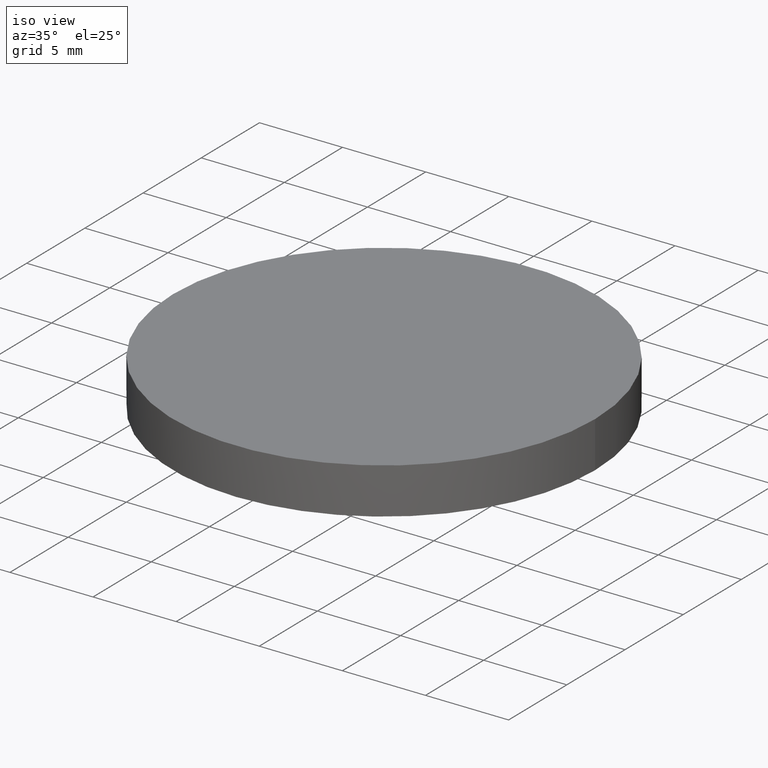
[diagram: clean part render]
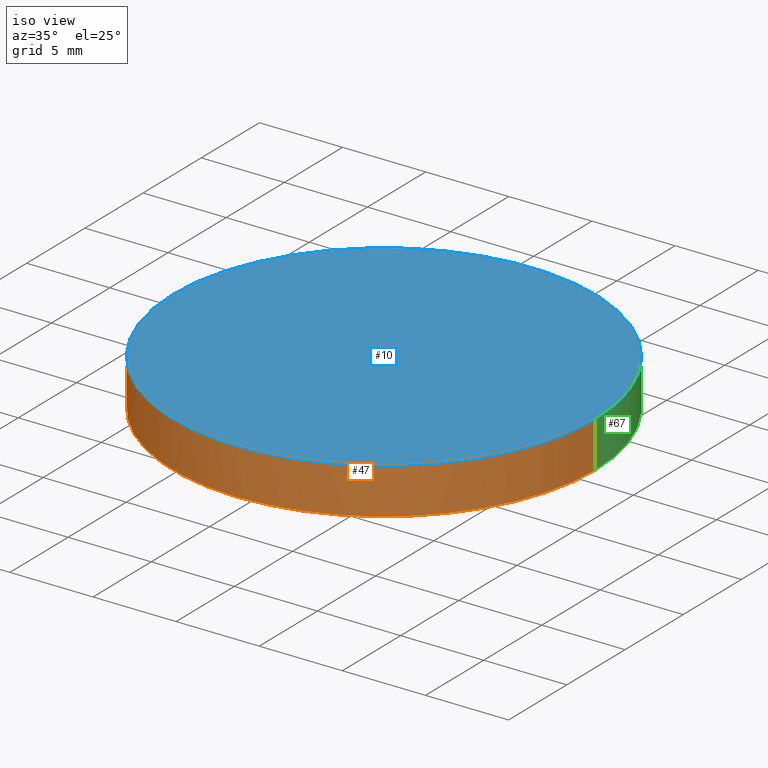
[diagram: same view with three faces highlighted in distinct colors, each labeled with its STEP entity id]
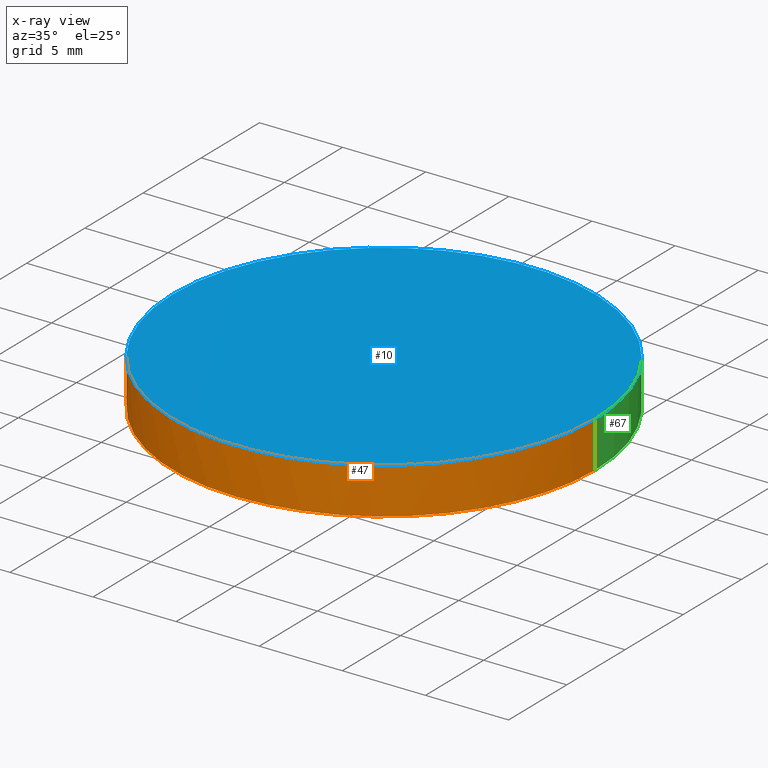
[diagram: x-ray of the same camera — body ghosted, the three highlighted faces saturated]
A machine part, iso view with three faces highlighted in distinct colors.
The next image is the same camera in x-ray (body ghosted, the three faces saturated) — at least one of them is partly hidden behind the body in this view.
Their STEP definitions:

[orange] entity #47 — the highlighted cylindrical surface (partial cylindrical patch) has radius 12.7 mm, axis along (0, 0, 1).
#2 = CARTESIAN_POINT ( 'NONE',  ( -12.69999999999999900, 3.997792089092478900E-015, 3.000000000000000000 ) ) ;
#12 = VERTEX_POINT ( 'NONE', #74 ) ;
#13 = ORIENTED_EDGE ( 'NONE', *, *, #63, .F. ) ;
#15 = DIRECTION ( 'NONE',  ( 1.000000000000000000, 0.0000000000000000000, 0.0000000000000000000 ) ) ;
#17 = DIRECTION ( 'NONE',  ( -0.0000000000000000000, -0.0000000000000000000, -1.000000000000000000 ) ) ;
#26 = VECTOR ( 'NONE', #231, 1000.000000000000000 ) ;
#27 = AXIS2_PLACEMENT_3D ( 'NONE', #31, #228, #195 ) ;
#29 = CYLINDRICAL_SURFACE ( 'NONE', #27, 12.69999999999999900 ) ;
#31 = CARTESIAN_POINT ( 'NONE',  ( 4.996003610813200500E-016, 2.442490654175340100E-015, 0.2221693186534720000 ) ) ;
#39 = DIRECTION ( 'NONE',  ( 1.000000000000000000, 0.0000000000000000000, 0.0000000000000000000 ) ) ;
#45 = VERTEX_POINT ( 'NONE', #75 ) ;
#47 = ADVANCED_FACE ( 'NONE', ( #60 ), #29, .T. ) ;
#52 = CARTESIAN_POINT ( 'NONE',  ( -12.69999999999999900, 3.997792089092478900E-015, 0.2221693186534720000 ) ) ;
#53 = AXIS2_PLACEMENT_3D ( 'NONE', #112, #17, #15 ) ;
#60 = FACE_OUTER_BOUND ( 'NONE', #129, .T. ) ;
#61 = DIRECTION ( 'NONE',  ( -0.0000000000000000000, -0.0000000000000000000, -1.000000000000000000 ) ) ;
#63 = EDGE_CURVE ( 'NONE', #68, #167, #107, .T. ) ;
#68 = VERTEX_POINT ( 'NONE', #52 ) ;
#71 = AXIS2_PLACEMENT_3D ( 'NONE', #218, #61, #39 ) ;
#74 = CARTESIAN_POINT ( 'NONE',  ( 12.69999999999999900, 2.442490654175340100E-015, 0.2221693186534720000 ) ) ;
#75 = CARTESIAN_POINT ( 'NONE',  ( -5.684341886080800200E-014, -12.70000000000014900, 0.2221693186534516300 ) ) ;
#79 = CARTESIAN_POINT ( 'NONE',  ( 12.69999999999999900, 2.442490654175340100E-015, 3.000000000000000000 ) ) ;
#81 = DIRECTION ( 'NONE',  ( 1.000000000000000000, 0.0000000000000000000, 0.0000000000000000000 ) ) ;
#88 = CIRCLE ( 'NONE', #191, 12.69999999999999900 ) ;
#102 = CARTESIAN_POINT ( 'NONE',  ( 4.996003610813200500E-016, 2.442490654175340100E-015, 0.2221693186534720000 ) ) ;
#107 = LINE ( 'NONE', #212, #139 ) ;
#109 = DIRECTION ( 'NONE',  ( 0.0000000000000000000, 0.0000000000000000000, 1.000000000000000000 ) ) ;
#112 = CARTESIAN_POINT ( 'NONE',  ( 4.996003610813200500E-016, 2.442490654175340100E-015, 0.2221693186534720000 ) ) ;
#118 = EDGE_CURVE ( 'NONE', #235, #167, #134, .T. ) ;
#129 = EDGE_LOOP ( 'NONE', ( #13, #174, #216, #210, #155 ) ) ;
#132 = LINE ( 'NONE', #187, #26 ) ;
#133 = EDGE_CURVE ( 'NONE', #12, #45, #173, .T. ) ;
#134 = CIRCLE ( 'NONE', #71, 12.69999999999999900 ) ;
#139 = VECTOR ( 'NONE', #109, 1000.000000000000000 ) ;
#141 = EDGE_CURVE ( 'NONE', #45, #68, #88, .T. ) ;
#155 = ORIENTED_EDGE ( 'NONE', *, *, #118, .T. ) ;
#167 = VERTEX_POINT ( 'NONE', #2 ) ;
#169 = DIRECTION ( 'NONE',  ( -0.0000000000000000000, -0.0000000000000000000, -1.000000000000000000 ) ) ;
#173 = CIRCLE ( 'NONE', #53, 12.69999999999999900 ) ;
#174 = ORIENTED_EDGE ( 'NONE', *, *, #141, .F. ) ;
#187 = CARTESIAN_POINT ( 'NONE',  ( 12.69999999999999900, 2.442490654175340100E-015, 0.2221693186534720000 ) ) ;
#191 = AXIS2_PLACEMENT_3D ( 'NONE', #102, #169, #81 ) ;
#195 = DIRECTION ( 'NONE',  ( 1.000000000000000000, 0.0000000000000000000, 0.0000000000000000000 ) ) ;
#210 = ORIENTED_EDGE ( 'NONE', *, *, #211, .T. ) ;
#211 = EDGE_CURVE ( 'NONE', #12, #235, #132, .T. ) ;
#212 = CARTESIAN_POINT ( 'NONE',  ( -12.69999999999999900, 3.997792089092478900E-015, 0.2221693186534720000 ) ) ;
#216 = ORIENTED_EDGE ( 'NONE', *, *, #133, .F. ) ;
#218 = CARTESIAN_POINT ( 'NONE',  ( 4.996003610813200500E-016, 2.442490654175340100E-015, 3.000000000000000000 ) ) ;
#228 = DIRECTION ( 'NONE',  ( 0.0000000000000000000, 0.0000000000000000000, 1.000000000000000000 ) ) ;
#231 = DIRECTION ( 'NONE',  ( 0.0000000000000000000, 0.0000000000000000000, 1.000000000000000000 ) ) ;
#235 = VERTEX_POINT ( 'NONE', #79 ) ;

[blue] entity #10 — the highlighted planar face has unit normal (0, 0, 1).
#2 = CARTESIAN_POINT ( 'NONE',  ( -12.69999999999999900, 3.997792089092478900E-015, 3.000000000000000000 ) ) ;
#7 = AXIS2_PLACEMENT_3D ( 'NONE', #78, #18, #198 ) ;
#10 = ADVANCED_FACE ( 'NONE', ( #192 ), #111, .T. ) ;
#18 = DIRECTION ( 'NONE',  ( -0.0000000000000000000, -0.0000000000000000000, -1.000000000000000000 ) ) ;
#20 = ORIENTED_EDGE ( 'NONE', *, *, #217, .F. ) ;
#39 = DIRECTION ( 'NONE',  ( 1.000000000000000000, 0.0000000000000000000, 0.0000000000000000000 ) ) ;
#61 = DIRECTION ( 'NONE',  ( -0.0000000000000000000, -0.0000000000000000000, -1.000000000000000000 ) ) ;
#71 = AXIS2_PLACEMENT_3D ( 'NONE', #218, #61, #39 ) ;
#78 = CARTESIAN_POINT ( 'NONE',  ( 4.996003610813200500E-016, 2.442490654175340100E-015, 3.000000000000000000 ) ) ;
#79 = CARTESIAN_POINT ( 'NONE',  ( 12.69999999999999900, 2.442490654175340100E-015, 3.000000000000000000 ) ) ;
#95 = DIRECTION ( 'NONE',  ( 1.000000000000000000, 0.0000000000000000000, -0.0000000000000000000 ) ) ;
#111 = PLANE ( 'NONE',  #125 ) ;
#118 = EDGE_CURVE ( 'NONE', #235, #167, #134, .T. ) ;
#123 = ORIENTED_EDGE ( 'NONE', *, *, #118, .F. ) ;
#125 = AXIS2_PLACEMENT_3D ( 'NONE', #229, #126, #95 ) ;
#126 = DIRECTION ( 'NONE',  ( 0.0000000000000000000, 0.0000000000000000000, 1.000000000000000000 ) ) ;
#134 = CIRCLE ( 'NONE', #71, 12.69999999999999900 ) ;
#167 = VERTEX_POINT ( 'NONE', #2 ) ;
#182 = EDGE_LOOP ( 'NONE', ( #123, #20 ) ) ;
#186 = CIRCLE ( 'NONE', #7, 12.69999999999999900 ) ;
#192 = FACE_OUTER_BOUND ( 'NONE', #182, .T. ) ;
#198 = DIRECTION ( 'NONE',  ( 1.000000000000000000, 0.0000000000000000000, 0.0000000000000000000 ) ) ;
#217 = EDGE_CURVE ( 'NONE', #167, #235, #186, .T. ) ;
#218 = CARTESIAN_POINT ( 'NONE',  ( 4.996003610813200500E-016, 2.442490654175340100E-015, 3.000000000000000000 ) ) ;
#229 = CARTESIAN_POINT ( 'NONE',  ( 0.0000000000000000000, 26.11199999999999800, 3.000000000000000000 ) ) ;
#235 = VERTEX_POINT ( 'NONE', #79 ) ;

[green] entity #67 — the highlighted cylindrical surface (partial cylindrical patch) has radius 12.7 mm, axis along (0, 0, 1).
#2 = CARTESIAN_POINT ( 'NONE',  ( -12.69999999999999900, 3.997792089092478900E-015, 3.000000000000000000 ) ) ;
#7 = AXIS2_PLACEMENT_3D ( 'NONE', #78, #18, #198 ) ;
#9 = EDGE_LOOP ( 'NONE', ( #145, #49, #199, #117, #93 ) ) ;
#12 = VERTEX_POINT ( 'NONE', #74 ) ;
#18 = DIRECTION ( 'NONE',  ( -0.0000000000000000000, -0.0000000000000000000, -1.000000000000000000 ) ) ;
#26 = VECTOR ( 'NONE', #231, 1000.000000000000000 ) ;
#32 = CARTESIAN_POINT ( 'NONE',  ( 4.996003610813200500E-016, 2.442490654175340100E-015, 0.2221693186534720000 ) ) ;
#40 = AXIS2_PLACEMENT_3D ( 'NONE', #221, #116, #80 ) ;
#49 = ORIENTED_EDGE ( 'NONE', *, *, #63, .T. ) ;
#51 = DIRECTION ( 'NONE',  ( 1.000000000000000000, 0.0000000000000000000, 0.0000000000000000000 ) ) ;
#52 = CARTESIAN_POINT ( 'NONE',  ( -12.69999999999999900, 3.997792089092478900E-015, 0.2221693186534720000 ) ) ;
#57 = DIRECTION ( 'NONE',  ( 1.000000000000000000, 0.0000000000000000000, 0.0000000000000000000 ) ) ;
#63 = EDGE_CURVE ( 'NONE', #68, #167, #107, .T. ) ;
#66 = EDGE_CURVE ( 'NONE', #68, #159, #205, .T. ) ;
#67 = ADVANCED_FACE ( 'NONE', ( #227 ), #101, .T. ) ;
#68 = VERTEX_POINT ( 'NONE', #52 ) ;
#74 = CARTESIAN_POINT ( 'NONE',  ( 12.69999999999999900, 2.442490654175340100E-015, 0.2221693186534720000 ) ) ;
#78 = CARTESIAN_POINT ( 'NONE',  ( 4.996003610813200500E-016, 2.442490654175340100E-015, 3.000000000000000000 ) ) ;
#79 = CARTESIAN_POINT ( 'NONE',  ( 12.69999999999999900, 2.442490654175340100E-015, 3.000000000000000000 ) ) ;
#80 = DIRECTION ( 'NONE',  ( 1.000000000000000000, 8.881784197001252300E-016, 0.0000000000000000000 ) ) ;
#82 = CIRCLE ( 'NONE', #40, 12.69999999999999900 ) ;
#86 = AXIS2_PLACEMENT_3D ( 'NONE', #178, #213, #57 ) ;
#93 = ORIENTED_EDGE ( 'NONE', *, *, #158, .F. ) ;
#101 = CYLINDRICAL_SURFACE ( 'NONE', #121, 12.69999999999999900 ) ;
#107 = LINE ( 'NONE', #212, #139 ) ;
#109 = DIRECTION ( 'NONE',  ( 0.0000000000000000000, 0.0000000000000000000, 1.000000000000000000 ) ) ;
#116 = DIRECTION ( 'NONE',  ( -0.0000000000000000000, -0.0000000000000000000, -1.000000000000000000 ) ) ;
#117 = ORIENTED_EDGE ( 'NONE', *, *, #211, .F. ) ;
#121 = AXIS2_PLACEMENT_3D ( 'NONE', #32, #161, #51 ) ;
#132 = LINE ( 'NONE', #187, #26 ) ;
#139 = VECTOR ( 'NONE', #109, 1000.000000000000000 ) ;
#145 = ORIENTED_EDGE ( 'NONE', *, *, #66, .F. ) ;
#158 = EDGE_CURVE ( 'NONE', #159, #12, #82, .T. ) ;
#159 = VERTEX_POINT ( 'NONE', #234 ) ;
#161 = DIRECTION ( 'NONE',  ( 0.0000000000000000000, 0.0000000000000000000, 1.000000000000000000 ) ) ;
#167 = VERTEX_POINT ( 'NONE', #2 ) ;
#178 = CARTESIAN_POINT ( 'NONE',  ( 4.996003610813200500E-016, 2.442490654175340100E-015, 0.2221693186534720000 ) ) ;
#186 = CIRCLE ( 'NONE', #7, 12.69999999999999900 ) ;
#187 = CARTESIAN_POINT ( 'NONE',  ( 12.69999999999999900, 2.442490654175340100E-015, 0.2221693186534720000 ) ) ;
#198 = DIRECTION ( 'NONE',  ( 1.000000000000000000, 0.0000000000000000000, 0.0000000000000000000 ) ) ;
#199 = ORIENTED_EDGE ( 'NONE', *, *, #217, .T. ) ;
#205 = CIRCLE ( 'NONE', #86, 12.69999999999999900 ) ;
#211 = EDGE_CURVE ( 'NONE', #12, #235, #132, .T. ) ;
#212 = CARTESIAN_POINT ( 'NONE',  ( -12.69999999999999900, 3.997792089092478900E-015, 0.2221693186534720000 ) ) ;
#213 = DIRECTION ( 'NONE',  ( -0.0000000000000000000, -0.0000000000000000000, -1.000000000000000000 ) ) ;
#217 = EDGE_CURVE ( 'NONE', #167, #235, #186, .T. ) ;
#221 = CARTESIAN_POINT ( 'NONE',  ( 4.996003610813200500E-016, 2.442490654175340100E-015, 0.2221693186534720000 ) ) ;
#227 = FACE_OUTER_BOUND ( 'NONE', #9, .T. ) ;
#231 = DIRECTION ( 'NONE',  ( 0.0000000000000000000, 0.0000000000000000000, 1.000000000000000000 ) ) ;
#234 = CARTESIAN_POINT ( 'NONE',  ( -5.684341886080800200E-014, 12.70000000000017900, 0.2221693186534516300 ) ) ;
#235 = VERTEX_POINT ( 'NONE', #79 ) ;